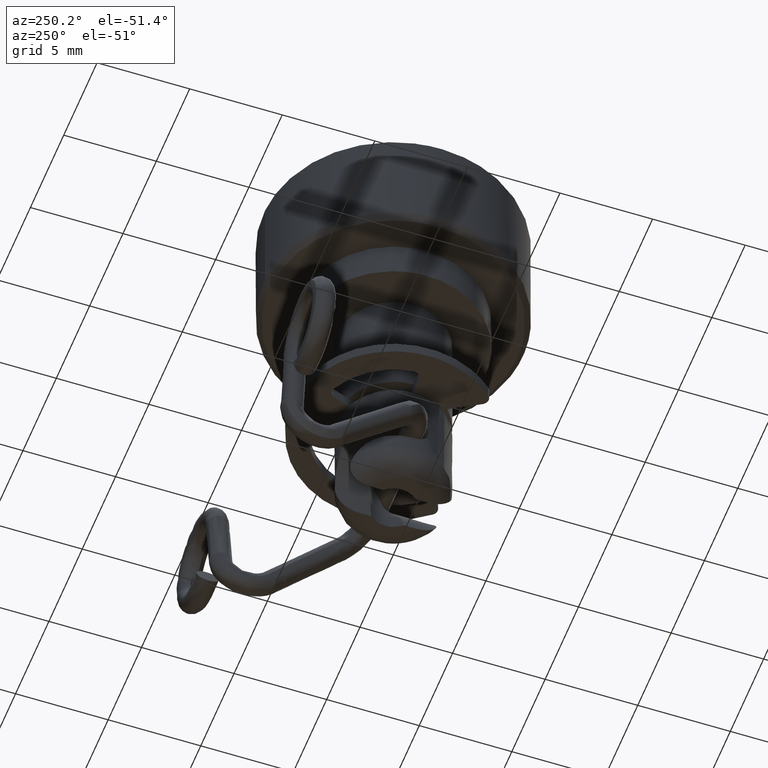
[diagram: clean part render]
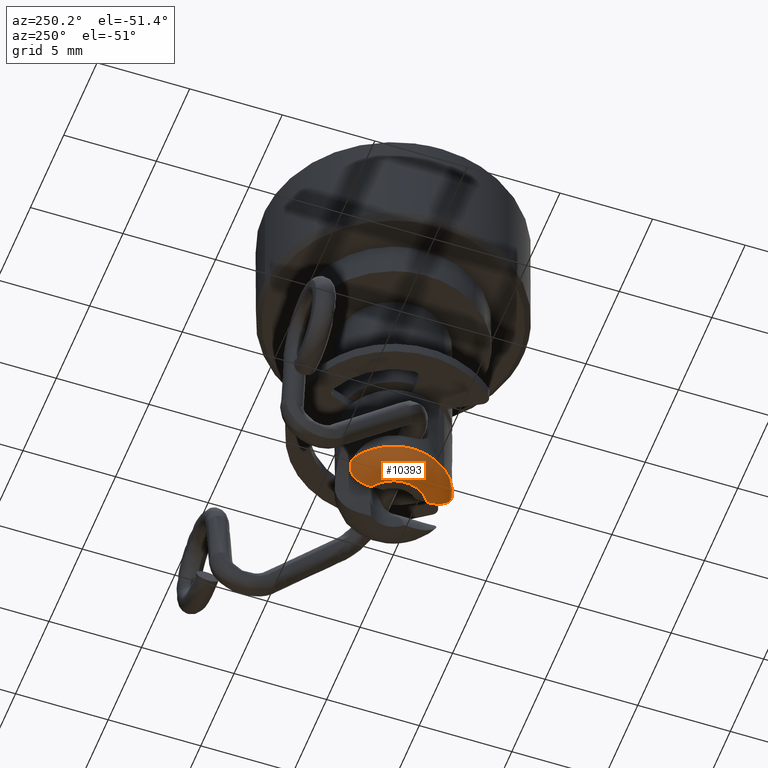
[diagram: same view with one face highlighted and labeled with its STEP entity id]
A machine part, auxiliary view. The second image highlights one B-rep face of the part: STEP entity #10393.
In plain terms, the highlighted face is a freeform B-spline surface patch.
Its self-contained STEP definition (entity closure, byte-faithful):
#5456=CARTESIAN_POINT('',(-1.522615606134316,-2.584887176639606,-1.547568999999996));
#5457=VERTEX_POINT('',#5456);
#5463=CARTESIAN_POINT('',(0.384460657985585,-2.975263013997480,-1.547569000000000));
#5464=VERTEX_POINT('',#5463);
#5465=CARTESIAN_POINT('',(0.384460657985585,-2.975263013997480,-1.547569000000000));
#5466=CARTESIAN_POINT('',(-0.636025323301617,-3.107129242288871,-1.547569000000000));
#5467=CARTESIAN_POINT('',(-1.522615606134316,-2.584887176639607,-1.547568999999996));
#5475=(BOUNDED_CURVE()B_SPLINE_CURVE(2,(#5465,#5466,#5467),.UNSPECIFIED.,.F.,.U.)B_SPLINE_CURVE_WITH_KNOTS((3,3),(0.0,0.267460293398471),.UNSPECIFIED.)CURVE()GEOMETRIC_REPRESENTATION_ITEM()RATIONAL_B_SPLINE_CURVE((1.0,0.901563571279179,0.908438486985432))REPRESENTATION_ITEM(''));
#5476=EDGE_CURVE('',#5464,#5457,#5475,.T.);
#5663=CARTESIAN_POINT('',(-2.161659251761425,2.080199336427715,-1.547568999998785));
#5664=VERTEX_POINT('',#5663);
#5692=CARTESIAN_POINT('',(-1.522615606134316,-2.584887176639606,-1.547568999999997));
#5693=CARTESIAN_POINT('',(-2.282616247061363,-2.137212176927061,-1.547569000000000));
#5694=CARTESIAN_POINT('',(-2.679371867541216,-1.349431878765542,-1.547569000000000));
#5695=CARTESIAN_POINT('',(-3.635377639893669,0.548770625529396,-1.547569000000000));
#5696=CARTESIAN_POINT('',(-2.161659251761425,2.080199336427715,-1.547568999998785));
#5704=(BOUNDED_CURVE()B_SPLINE_CURVE(2,(#5692,#5693,#5694,#5695,#5696),.UNSPECIFIED.,.F.,.U.)B_SPLINE_CURVE_WITH_KNOTS((3,2,3),(0.267460293398471,0.500000000000000,1.0),.UNSPECIFIED.)CURVE()GEOMETRIC_REPRESENTATION_ITEM()RATIONAL_B_SPLINE_CURVE((0.908438486985431,0.914415788740875,1.0,0.815979360020054,1.0))REPRESENTATION_ITEM(''));
#5705=EDGE_CURVE('',#5457,#5664,#5704,.T.);
#9845=CARTESIAN_POINT('',(-1.359040341363026,1.102501371519792,-2.797569000000000));
#9846=VERTEX_POINT('',#9845);
#9852=CARTESIAN_POINT('',(-2.161659251761425,2.080199336427715,-1.547568999998785));
#9853=CARTESIAN_POINT('',(-2.123050988261713,2.120319486707601,-1.616231688626163));
#9854=CARTESIAN_POINT('',(-2.084335408957541,2.150337351309086,-1.688624931391165));
#9855=CARTESIAN_POINT('',(-2.025683652905718,2.177726352395124,-1.803520638470471));
#9856=CARTESIAN_POINT('',(-2.006006945123815,2.183824957659470,-1.842938609684907));
#9857=CARTESIAN_POINT('',(-1.967594219639633,2.189318284160207,-1.921299195527908));
#9858=CARTESIAN_POINT('',(-1.948694073167136,2.188809690093969,-1.960559487576094));
#9859=CARTESIAN_POINT('',(-1.920647063897932,2.183065322557534,-2.019492426913234));
#9860=CARTESIAN_POINT('',(-1.911348232990597,2.180318388207341,-2.039143608555212));
#9861=CARTESIAN_POINT('',(-1.892819272401140,2.173119157250320,-2.078443560398443));
#9862=CARTESIAN_POINT('',(-1.883566057304542,2.168646437334106,-2.098141834216025));
#9863=CARTESIAN_POINT('',(-1.856326686712803,2.152896567080128,-2.156196693624304));
#9864=CARTESIAN_POINT('',(-1.838711099878493,2.139257041180791,-2.193830875985821));
#9865=CARTESIAN_POINT('',(-1.804180003766031,2.106068551925525,-2.266933733743139));
#9866=CARTESIAN_POINT('',(-1.787235225580789,2.086477072651480,-2.302464566487844));
#9867=CARTESIAN_POINT('',(-1.753795016393199,2.041680092024059,-2.370977396138676));
#9868=CARTESIAN_POINT('',(-1.737594519608269,2.016889511531007,-2.403351940732019));
#9869=CARTESIAN_POINT('',(-1.705770315584763,1.963034755171848,-2.464553783885049));
#9870=CARTESIAN_POINT('',(-1.690148123124945,1.933968078442503,-2.493379626828468));
#9871=CARTESIAN_POINT('',(-1.659093823225504,1.871855212928838,-2.547545354190675));
#9872=CARTESIAN_POINT('',(-1.643716736890343,1.838897344695463,-2.572767289985656));
#9873=CARTESIAN_POINT('',(-1.613460725837675,1.770754299216344,-2.618802714396875));
#9874=CARTESIAN_POINT('',(-1.598499163405816,1.735403495703899,-2.639764003530703));
#9875=CARTESIAN_POINT('',(-1.568601152166339,1.662395670507152,-2.677780066076187));
#9876=CARTESIAN_POINT('',(-1.553622944584409,1.624627801547081,-2.694875633576373));
#9877=CARTESIAN_POINT('',(-1.508646510976091,1.508820712832795,-2.740135059434893));
#9878=CARTESIAN_POINT('',(-1.479026445669460,1.429509223014321,-2.761921512629464));
#9879=CARTESIAN_POINT('',(-1.419234844852127,1.267617051801872,-2.790701915593735));
#9880=CARTESIAN_POINT('',(-1.388886190682589,1.184502105225735,-2.797569001306679));
#9881=CARTESIAN_POINT('',(-1.359040341363026,1.102501371519792,-2.797569000000000));
#9882=B_SPLINE_CURVE_WITH_KNOTS('',3,(#9852,#9853,#9854,#9855,#9856,#9857,#9858,#9859,#9860,#9861,#9862,#9863,#9864,#9865,#9866,#9867,#9868,#9869,#9870,#9871,#9872,#9873,#9874,#9875,#9876,#9877,#9878,#9879,#9880,#9881),.UNSPECIFIED.,.F.,.U.,(4,2,2,2,2,2,2,2,2,2,2,2,2,2,4),(0.0,0.124999999999999,0.187499999999998,0.249999999999997,0.281249999999997,0.312499999999997,0.374999999999997,0.437499999999998,0.499999999999998,0.562499999999998,0.624999999999998,0.687499999999998,0.749999999999999,0.874999999999999,1.0),.UNSPECIFIED.);
#9883=EDGE_CURVE('',#5664,#9846,#9882,.T.);
#9905=CARTESIAN_POINT('',(-0.332405349317000,-1.718140450428505,-2.797569000000000));
#9906=VERTEX_POINT('',#9905);
#9907=CARTESIAN_POINT('',(0.384460657985585,-2.975263013997480,-1.547569000000000));
#9908=CARTESIAN_POINT('',(0.353725753220118,-2.979234549170721,-1.630869672179825));
#9909=CARTESIAN_POINT('',(0.323404935149963,-2.974356987596519,-1.713152922088792));
#9910=CARTESIAN_POINT('',(0.278099530680259,-2.954196656421312,-1.834942802435956));
#9911=CARTESIAN_POINT('',(0.263023958552787,-2.945321051997315,-1.875263822567781));
#9912=CARTESIAN_POINT('',(0.232807172307743,-2.923153194939138,-1.955296703780111));
#9913=CARTESIAN_POINT('',(0.217641540884975,-2.909808081019763,-1.995064698932035));
#9914=CARTESIAN_POINT('',(0.172842896799725,-2.864020539901286,-2.110704623519117));
#9915=CARTESIAN_POINT('',(0.143571837376660,-2.825667465240883,-2.183855838643853));
#9916=CARTESIAN_POINT('',(0.099511222261994,-2.756662011372606,-2.287386242709175));
#9917=CARTESIAN_POINT('',(0.084722905090603,-2.731596910260179,-2.321017095539517));
#9918=CARTESIAN_POINT('',(0.055269015164988,-2.678204823394388,-2.385249918964169));
#9919=CARTESIAN_POINT('',(0.040662323962867,-2.650007471363921,-2.415736580907402));
#9920=CARTESIAN_POINT('',(-0.003093535514354,-2.561133589457696,-2.502399086767228));
#9921=CARTESIAN_POINT('',(-0.032181011021779,-2.496207441965324,-2.553812445748871));
#9922=CARTESIAN_POINT('',(-0.076767001321745,-2.390536364456005,-2.621075239942960));
#9923=CARTESIAN_POINT('',(-0.091684378628970,-2.354162341454572,-2.641671519141432));
#9924=CARTESIAN_POINT('',(-0.121408047386266,-2.280147457790476,-2.678822375509757));
#9925=CARTESIAN_POINT('',(-0.151134822083010,-2.204594544266973,-2.712106210244977));
#9926=CARTESIAN_POINT('',(-0.181115306444651,-2.126147298083776,-2.737869484548138));
#9927=CARTESIAN_POINT('',(-0.211318056590485,-2.046306397336791,-2.759913212420300));
#9928=CARTESIAN_POINT('',(-0.226597851232822,-2.005506966726295,-2.769099118149168));
#9929=CARTESIAN_POINT('',(-0.272184653172494,-1.882922264189031,-2.790780293142500));
#9930=CARTESIAN_POINT('',(-0.302347399385148,-1.800723925370904,-2.797569001314795));
#9931=CARTESIAN_POINT('',(-0.332405349317000,-1.718140450428505,-2.797569000000000));
#9932=B_SPLINE_CURVE_WITH_KNOTS('',3,(#9907,#9908,#9909,#9910,#9911,#9912,#9913,#9914,#9915,#9916,#9917,#9918,#9919,#9920,#9921,#9922,#9923,#9924,#9925,#9926,#9927,#9928,#9929,#9930,#9931),.UNSPECIFIED.,.F.,.U.,(4,2,2,2,2,2,2,2,2,1,2,2,4),(0.0,0.125000000000000,0.187500000000000,0.250000000000000,0.374999999999999,0.437500000000000,0.500000000000000,0.625000000000000,0.687500000000000,0.750000000000000,0.812500000000000,0.875000000000000,1.0),.UNSPECIFIED.);
#9933=EDGE_CURVE('',#5464,#9906,#9932,.T.);
#10342=CARTESIAN_POINT('',(-0.332405349317000,-1.718140450428505,-2.797569000000000));
#10343=CARTESIAN_POINT('',(-1.305477817005290,-1.529881979790856,-2.797569000000000));
#10344=CARTESIAN_POINT('',(-1.644461067660190,-0.598537985922188,-2.797569000000000));
#10345=CARTESIAN_POINT('',(-1.983444318315091,0.332806007946480,-2.797569000000000));
#10346=CARTESIAN_POINT('',(-1.359040341363026,1.102501371519792,-2.797569000000000));
#10354=(BOUNDED_CURVE()B_SPLINE_CURVE(2,(#10342,#10343,#10344,#10345,#10346),.UNSPECIFIED.,.F.,.U.)B_SPLINE_CURVE_WITH_KNOTS((3,2,3),(0.0,0.500000000000000,1.0),.UNSPECIFIED.)CURVE()GEOMETRIC_REPRESENTATION_ITEM()RATIONAL_B_SPLINE_CURVE((1.0,0.870139563718390,1.0,0.870139563718390,1.0))REPRESENTATION_ITEM(''));
#10355=EDGE_CURVE('',#9906,#9846,#10354,.T.);
#10363=CARTESIAN_POINT('',(0.740103147993546,-2.904152493073915,-1.460647556359155));
#10364=CARTESIAN_POINT('',(-1.704428997373034,-3.527124578896538,-1.460647556359155));
#10365=CARTESIAN_POINT('',(-2.735313142629203,-1.224710735013517,-1.460647556359155));
#10366=CARTESIAN_POINT('',(-3.771129663711568,1.088719254997786,-1.460647556359155));
#10367=CARTESIAN_POINT('',(-1.661692663671512,2.494119456681590,-1.460647556359155));
#10368=CARTESIAN_POINT('',(0.764785144079920,-3.001004236864778,-2.894490457782596));
#10369=CARTESIAN_POINT('',(-1.761270682152666,-3.644752068103264,-2.894490457782595));
#10370=CARTESIAN_POINT('',(-2.826534195349232,-1.265554103468973,-2.894490457782596));
#10371=CARTESIAN_POINT('',(-3.896894576147460,1.125027389159713,-2.894490457782594));
#10372=CARTESIAN_POINT('',(-1.717109117354605,2.577296844638465,-2.894490457782595));
#10373=CARTESIAN_POINT('',(0.410697462544826,-1.611570039908933,-2.794543205277591));
#10374=CARTESIAN_POINT('',(-0.945820411934028,-1.957269224647220,-2.794543205277590));
#10375=CARTESIAN_POINT('',(-1.517877839040245,-0.679615527355987,-2.794543205277591));
#10376=CARTESIAN_POINT('',(-2.092672336298951,0.604151241166161,-2.794543205277590));
#10377=CARTESIAN_POINT('',(-0.922105198916400,1.384034826658703,-2.794543205277591));
#10385=(BOUNDED_SURFACE()B_SPLINE_SURFACE(2,2,((#10363,#10368,#10373),(#10364,#10369,#10374),(#10365,#10370,#10375),(#10366,#10371,#10376),(#10367,#10372,#10377)),.UNSPECIFIED.,.F.,.F.,.U.)B_SPLINE_SURFACE_WITH_KNOTS((3,2,3),(3,3),(0.0,4.373751452925724,8.763292088132397),(0.0,2.277967486393516),.UNSPECIFIED.)GEOMETRIC_REPRESENTATION_ITEM()RATIONAL_B_SPLINE_SURFACE(((0.896174003148343,0.588091735359815,0.896173991862131),(0.694392154464719,0.455677452932989,0.694392145719702),(0.919258316275454,0.603240237457421,0.919258304698524),(0.693580390729203,0.455144753320810,0.693580381994409),(0.897636422593801,0.589051411479053,0.897636411289172)))REPRESENTATION_ITEM('')SURFACE());
#10386=ORIENTED_EDGE('',*,*,#5476,.T.);
#10387=ORIENTED_EDGE('',*,*,#5705,.T.);
#10388=ORIENTED_EDGE('',*,*,#9883,.T.);
#10389=ORIENTED_EDGE('',*,*,#10355,.F.);
#10390=ORIENTED_EDGE('',*,*,#9933,.F.);
#10391=EDGE_LOOP('',(#10386,#10387,#10388,#10389,#10390));
#10392=FACE_OUTER_BOUND('',#10391,.T.);
#10393=ADVANCED_FACE('',(#10392),#10385,.T.);